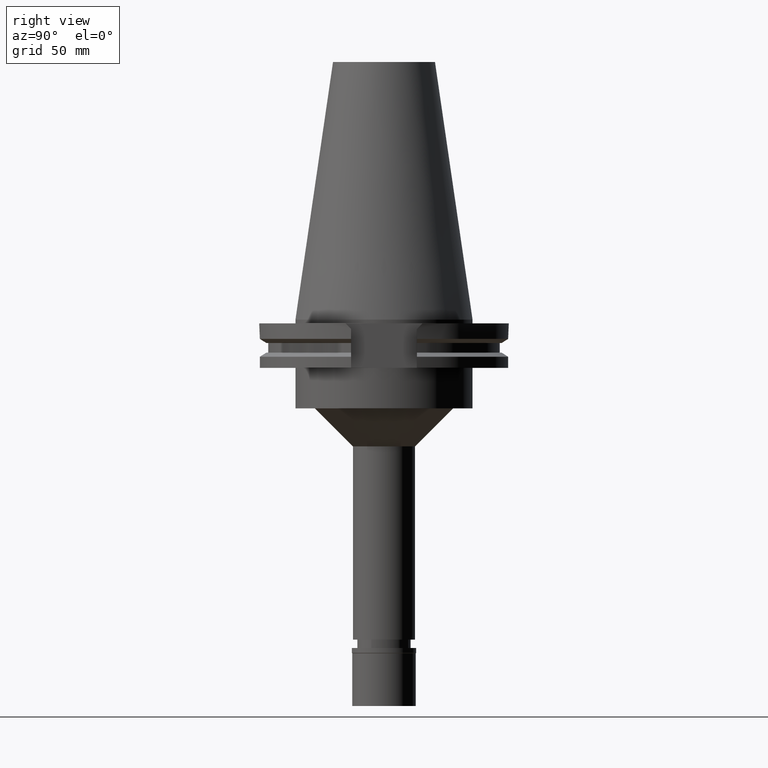
[diagram: clean part render]
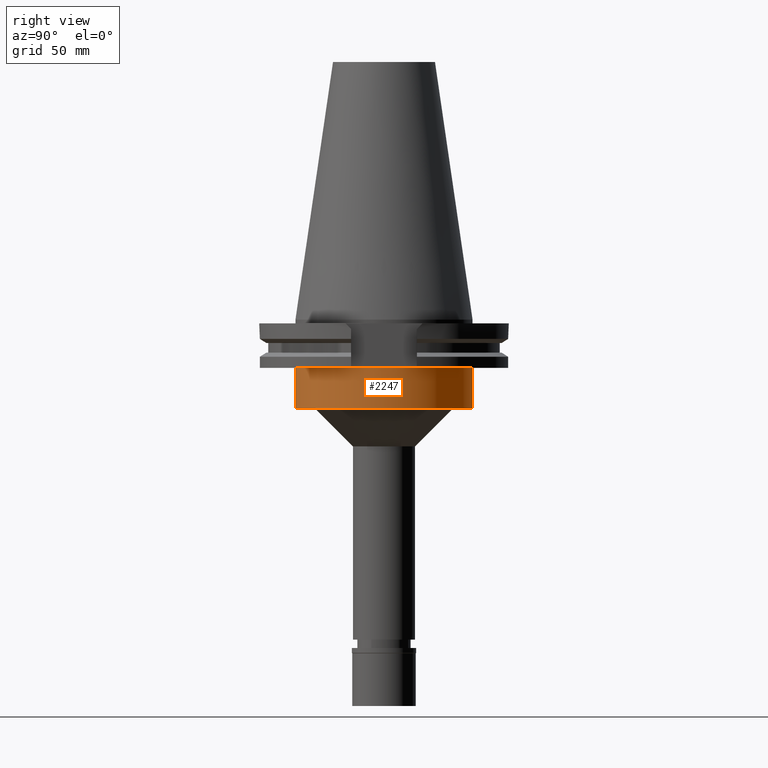
[diagram: same view with one face highlighted and labeled with its STEP entity id]
A machine part, right view. The second image highlights one B-rep face of the part: STEP entity #2247.
In plain terms, the highlighted cylindrical surface (partial cylindrical patch) has radius 34.925 mm, axis along (0, 0, -1).
Its self-contained STEP definition (entity closure, byte-faithful):
#79 = CIRCLE ( 'NONE', #2978, 34.92499999999999716 ) ;
#98 = EDGE_CURVE ( 'NONE', #922, #1625, #441, .T. ) ;
#120 = FACE_OUTER_BOUND ( 'NONE', #966, .T. ) ;
#321 = DIRECTION ( 'NONE',  ( 0.0000000000000000000, 0.0000000000000000000, -1.000000000000000000 ) ) ;
#356 = CARTESIAN_POINT ( 'NONE',  ( 0.0000000000000000000, -34.92499999999999716, -19.05000000000000071 ) ) ;
#433 = EDGE_CURVE ( 'NONE', #2412, #1625, #2310, .T. ) ;
#441 = CIRCLE ( 'NONE', #1308, 34.92499999999999716 ) ;
#493 = CARTESIAN_POINT ( 'NONE',  ( 0.0000000000000000000, -34.92499999999999716, -35.00000000000000000 ) ) ;
#553 = DIRECTION ( 'NONE',  ( 0.0000000000000000000, -1.000000000000000000, 0.0000000000000000000 ) ) ;
#591 = ORIENTED_EDGE ( 'NONE', *, *, #98, .T. ) ;
#607 = DIRECTION ( 'NONE',  ( 0.0000000000000000000, 1.000000000000000000, 0.0000000000000000000 ) ) ;
#612 = CARTESIAN_POINT ( 'NONE',  ( 0.0000000000000000000, 2.618907179976999641E-14, 113.8500000000000085 ) ) ;
#647 = CARTESIAN_POINT ( 'NONE',  ( 0.0000000000000000000, 34.92499999999999716, -35.00000000000000000 ) ) ;
#922 = VERTEX_POINT ( 'NONE', #493 ) ;
#952 = VECTOR ( 'NONE', #1122, 1000.000000000000000 ) ;
#966 = EDGE_LOOP ( 'NONE', ( #1535, #1220, #591, #1288 ) ) ;
#1077 = DIRECTION ( 'NONE',  ( 0.0000000000000000000, 0.0000000000000000000, -1.000000000000000000 ) ) ;
#1122 = DIRECTION ( 'NONE',  ( 0.0000000000000000000, 0.0000000000000000000, -1.000000000000000000 ) ) ;
#1158 = CYLINDRICAL_SURFACE ( 'NONE', #2842, 34.92499999999999716 ) ;
#1213 = CARTESIAN_POINT ( 'NONE',  ( 0.0000000000000000000, 34.92499999999999716, -19.05000000000000071 ) ) ;
#1220 = ORIENTED_EDGE ( 'NONE', *, *, #2750, .T. ) ;
#1288 = ORIENTED_EDGE ( 'NONE', *, *, #433, .F. ) ;
#1308 = AXIS2_PLACEMENT_3D ( 'NONE', #1378, #1336, #553 ) ;
#1336 = DIRECTION ( 'NONE',  ( 0.0000000000000000000, 0.0000000000000000000, 1.000000000000000000 ) ) ;
#1356 = CARTESIAN_POINT ( 'NONE',  ( 0.0000000000000000000, 2.618907179976999641E-14, -19.05000000000000071 ) ) ;
#1378 = CARTESIAN_POINT ( 'NONE',  ( 0.0000000000000000000, 2.618907179976999641E-14, -35.00000000000000000 ) ) ;
#1535 = ORIENTED_EDGE ( 'NONE', *, *, #2734, .T. ) ;
#1625 = VERTEX_POINT ( 'NONE', #647 ) ;
#1646 = DIRECTION ( 'NONE',  ( 0.0000000000000000000, -1.000000000000000000, 0.0000000000000000000 ) ) ;
#1819 = CARTESIAN_POINT ( 'NONE',  ( 0.0000000000000000000, 34.92499999999999716, -19.05000000000000071 ) ) ;
#2131 = CARTESIAN_POINT ( 'NONE',  ( 0.0000000000000000000, -34.92499999999999716, -19.05000000000000071 ) ) ;
#2154 = LINE ( 'NONE', #2131, #952 ) ;
#2186 = DIRECTION ( 'NONE',  ( 0.0000000000000000000, 0.0000000000000000000, -1.000000000000000000 ) ) ;
#2247 = ADVANCED_FACE ( 'NONE', ( #120 ), #1158, .T. ) ;
#2310 = LINE ( 'NONE', #1819, #2862 ) ;
#2412 = VERTEX_POINT ( 'NONE', #1213 ) ;
#2647 = VERTEX_POINT ( 'NONE', #356 ) ;
#2734 = EDGE_CURVE ( 'NONE', #2412, #2647, #79, .T. ) ;
#2750 = EDGE_CURVE ( 'NONE', #2647, #922, #2154, .T. ) ;
#2842 = AXIS2_PLACEMENT_3D ( 'NONE', #612, #2186, #1646 ) ;
#2862 = VECTOR ( 'NONE', #1077, 1000.000000000000000 ) ;
#2978 = AXIS2_PLACEMENT_3D ( 'NONE', #1356, #321, #607 ) ;